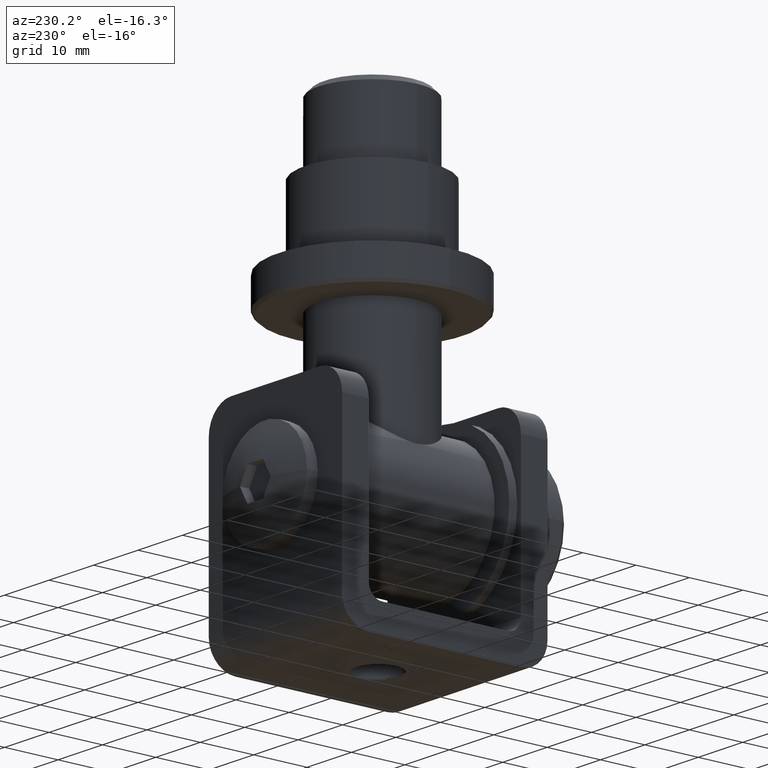
[diagram: clean part render]
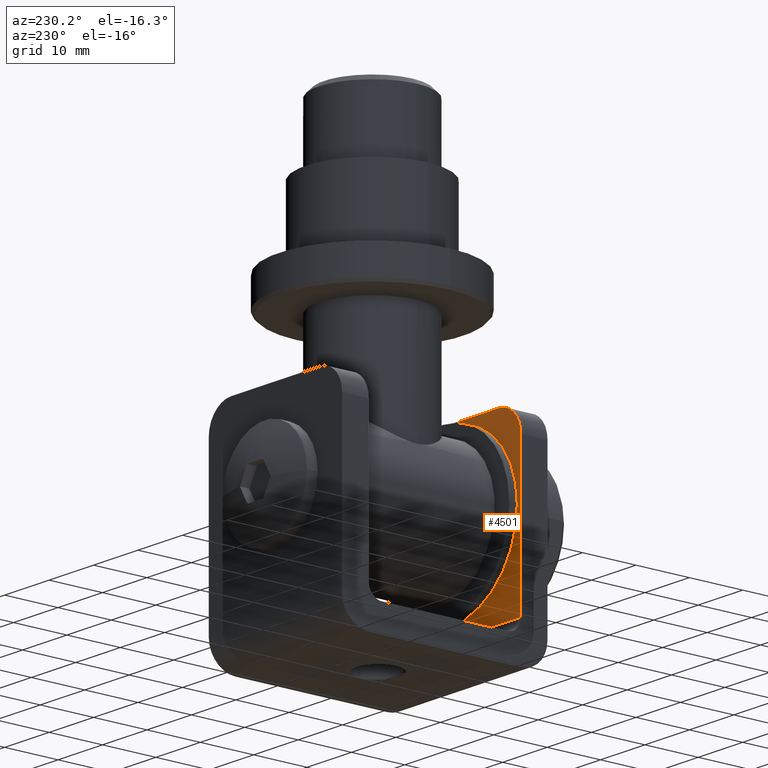
[diagram: same view with one face highlighted and labeled with its STEP entity id]
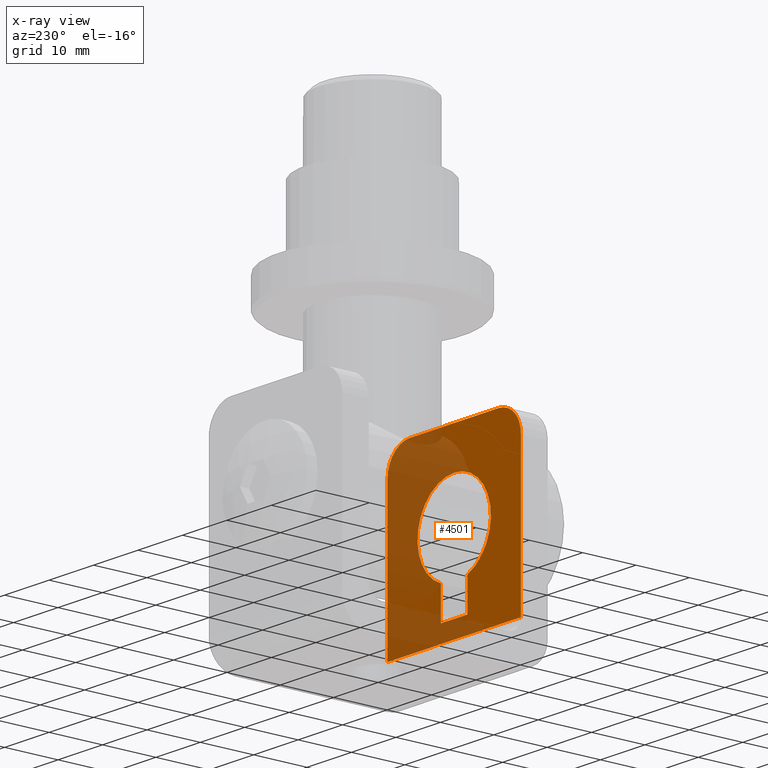
[diagram: x-ray of the same camera — body ghosted, the highlighted face saturated]
A machine part, auxiliary view. The second image highlights one B-rep face of the part: STEP entity #4501.
The next image is the same camera in x-ray: the body ghosted, the highlighted face saturated — about 50% of this face is hidden behind the body in this view.
In plain terms, the highlighted planar face has unit normal (0, -1, 0).
Its self-contained STEP definition (entity closure, byte-faithful):
#91 = EDGE_CURVE ( 'NONE', #6313, #6776, #5718, .T. ) ;
#124 = VERTEX_POINT ( 'NONE', #8130 ) ;
#142 = ORIENTED_EDGE ( 'NONE', *, *, #3111, .T. ) ;
#407 = CARTESIAN_POINT ( 'NONE',  ( 3.000000000000000000, -14.24999999999999822, -5.885213074469702654 ) ) ;
#464 = CARTESIAN_POINT ( 'NONE',  ( 2.999999999999999112, -14.24999999999999822, -17.49999999999999645 ) ) ;
#517 = EDGE_LOOP ( 'NONE', ( #13734, #3013, #9429, #1323, #13271 ) ) ;
#797 = VECTOR ( 'NONE', #16139, 1000.000000000000000 ) ;
#872 = VERTEX_POINT ( 'NONE', #14243 ) ;
#996 = VERTEX_POINT ( 'NONE', #4168 ) ;
#1015 = VECTOR ( 'NONE', #13356, 1000.000000000000000 ) ;
#1093 = EDGE_CURVE ( 'NONE', #872, #4428, #12724, .T. ) ;
#1323 = ORIENTED_EDGE ( 'NONE', *, *, #5854, .T. ) ;
#1578 = DIRECTION ( 'NONE',  ( 0.000000000000000000, -1.000000000000000000, 0.000000000000000000 ) ) ;
#1721 = LINE ( 'NONE', #3737, #8691 ) ;
#2162 = LINE ( 'NONE', #2271, #10100 ) ;
#2271 = CARTESIAN_POINT ( 'NONE',  ( 15.00000000000000000, -14.24999999999999822, 17.49999999999999645 ) ) ;
#2303 = DIRECTION ( 'NONE',  ( 0.000000000000000000, 0.000000000000000000, -1.000000000000000000 ) ) ;
#2605 = DIRECTION ( 'NONE',  ( 0.000000000000000000, 0.000000000000000000, 1.000000000000000000 ) ) ;
#2718 = VECTOR ( 'NONE', #2605, 1000.000000000000000 ) ;
#2788 = DIRECTION ( 'NONE',  ( 1.040834085586084257E-15, 0.000000000000000000, -1.000000000000000000 ) ) ;
#2917 = CARTESIAN_POINT ( 'NONE',  ( -3.000000000000000000, -14.24999999999999822, -11.89000000000000234 ) ) ;
#3013 = ORIENTED_EDGE ( 'NONE', *, *, #13685, .T. ) ;
#3111 = EDGE_CURVE ( 'NONE', #15588, #124, #5861, .T. ) ;
#3190 = AXIS2_PLACEMENT_3D ( 'NONE', #11355, #12691, #2788 ) ;
#3198 = ORIENTED_EDGE ( 'NONE', *, *, #91, .F. ) ;
#3207 = DIRECTION ( 'NONE',  ( 0.000000000000000000, -0.000000000000000000, -1.000000000000000000 ) ) ;
#3451 = DIRECTION ( 'NONE',  ( 0.000000000000000000, 0.000000000000000000, -1.000000000000000000 ) ) ;
#3737 = CARTESIAN_POINT ( 'NONE',  ( -15.00000000000000000, -14.24999999999999822, -14.99999999999999467 ) ) ;
#3975 = ORIENTED_EDGE ( 'NONE', *, *, #8413, .T. ) ;
#4168 = CARTESIAN_POINT ( 'NONE',  ( -15.00000000000000000, -14.24999999999999822, -14.99999999999999467 ) ) ;
#4428 = VERTEX_POINT ( 'NONE', #407 ) ;
#4470 = DIRECTION ( 'NONE',  ( 0.000000000000000000, -1.000000000000000000, 0.000000000000000000 ) ) ;
#4501 = ADVANCED_FACE ( 'NONE', ( #10131, #13470 ), #14492, .F. ) ;
#4540 = DIRECTION ( 'NONE',  ( 0.000000000000000000, 0.000000000000000000, 1.000000000000000000 ) ) ;
#4589 = CARTESIAN_POINT ( 'NONE',  ( 15.00000000000000000, -14.24999999999999822, -17.49999999999999645 ) ) ;
#4729 = AXIS2_PLACEMENT_3D ( 'NONE', #13449, #5986, #2303 ) ;
#4767 = AXIS2_PLACEMENT_3D ( 'NONE', #13135, #4470, #3207 ) ;
#5152 = CARTESIAN_POINT ( 'NONE',  ( 0.000000000000000000, -14.24999999999999822, 1.799999999999996048 ) ) ;
#5166 = ORIENTED_EDGE ( 'NONE', *, *, #6595, .T. ) ;
#5249 = ORIENTED_EDGE ( 'NONE', *, *, #5609, .F. ) ;
#5352 = AXIS2_PLACEMENT_3D ( 'NONE', #13547, #11071, #3451 ) ;
#5609 = EDGE_CURVE ( 'NONE', #11874, #124, #2162, .T. ) ;
#5612 = CIRCLE ( 'NONE', #9365, 8.250000000000000000 ) ;
#5633 = CIRCLE ( 'NONE', #5352, 8.250000000000000000 ) ;
#5718 = LINE ( 'NONE', #4589, #15258 ) ;
#5792 = CARTESIAN_POINT ( 'NONE',  ( -3.000000000000000000, -14.24999999999999822, -5.885213074469702654 ) ) ;
#5854 = EDGE_CURVE ( 'NONE', #14173, #872, #14422, .T. ) ;
#5861 = CIRCLE ( 'NONE', #3190, 5.000000000000000000 ) ;
#5986 = DIRECTION ( 'NONE',  ( -0.000000000000000000, 1.000000000000000000, -0.000000000000000000 ) ) ;
#6313 = VERTEX_POINT ( 'NONE', #12312 ) ;
#6572 = DIRECTION ( 'NONE',  ( -1.000000000000000000, 0.000000000000000000, 0.000000000000000000 ) ) ;
#6595 = EDGE_CURVE ( 'NONE', #996, #15588, #8157, .T. ) ;
#6776 = VERTEX_POINT ( 'NONE', #15221 ) ;
#6836 = VERTEX_POINT ( 'NONE', #8940 ) ;
#7362 = CIRCLE ( 'NONE', #4729, 5.000000000000000000 ) ;
#8130 = CARTESIAN_POINT ( 'NONE',  ( -9.999999999999998224, -14.24999999999999822, 17.49999999999999645 ) ) ;
#8157 = LINE ( 'NONE', #8627, #2718 ) ;
#8413 = EDGE_CURVE ( 'NONE', #6313, #996, #1721, .T. ) ;
#8609 = CARTESIAN_POINT ( 'NONE',  ( -15.00000000000000000, -14.24999999999999822, 12.49999999999999289 ) ) ;
#8627 = CARTESIAN_POINT ( 'NONE',  ( -15.00000000000000000, -14.24999999999999822, -17.49999999999999645 ) ) ;
#8691 = VECTOR ( 'NONE', #6572, 1000.000000000000000 ) ;
#8940 = CARTESIAN_POINT ( 'NONE',  ( 0.000000000000000000, -14.24999999999999822, 10.04999999999999716 ) ) ;
#9365 = AXIS2_PLACEMENT_3D ( 'NONE', #5152, #1578, #13921 ) ;
#9429 = ORIENTED_EDGE ( 'NONE', *, *, #11752, .T. ) ;
#9672 = EDGE_CURVE ( 'NONE', #4428, #6836, #5612, .T. ) ;
#9819 = VERTEX_POINT ( 'NONE', #5792 ) ;
#10100 = VECTOR ( 'NONE', #12035, 1000.000000000000000 ) ;
#10131 = FACE_BOUND ( 'NONE', #517, .T. ) ;
#10461 = DIRECTION ( 'NONE',  ( 0.000000000000000000, 0.000000000000000000, 1.000000000000000000 ) ) ;
#11071 = DIRECTION ( 'NONE',  ( 0.000000000000000000, -1.000000000000000000, 0.000000000000000000 ) ) ;
#11355 = CARTESIAN_POINT ( 'NONE',  ( -9.999999999999998224, -14.24999999999999822, 12.49999999999999289 ) ) ;
#11363 = ORIENTED_EDGE ( 'NONE', *, *, #15039, .T. ) ;
#11507 = LINE ( 'NONE', #13307, #1015 ) ;
#11752 = EDGE_CURVE ( 'NONE', #9819, #14173, #11507, .T. ) ;
#11874 = VERTEX_POINT ( 'NONE', #12308 ) ;
#12035 = DIRECTION ( 'NONE',  ( -1.000000000000000000, -0.000000000000000000, -0.000000000000000000 ) ) ;
#12308 = CARTESIAN_POINT ( 'NONE',  ( 9.999999999999998224, -14.24999999999999822, 17.49999999999999645 ) ) ;
#12312 = CARTESIAN_POINT ( 'NONE',  ( 15.00000000000000000, -14.24999999999999822, -14.99999999999999467 ) ) ;
#12532 = VECTOR ( 'NONE', #10461, 1000.000000000000000 ) ;
#12691 = DIRECTION ( 'NONE',  ( -0.000000000000000000, 1.000000000000000000, -0.000000000000000000 ) ) ;
#12724 = LINE ( 'NONE', #464, #12532 ) ;
#13135 = CARTESIAN_POINT ( 'NONE',  ( 15.00000000000000000, -14.24999999999999822, -17.49999999999999645 ) ) ;
#13271 = ORIENTED_EDGE ( 'NONE', *, *, #1093, .T. ) ;
#13307 = CARTESIAN_POINT ( 'NONE',  ( -2.999999999999999112, -14.24999999999999822, -17.49999999999999645 ) ) ;
#13356 = DIRECTION ( 'NONE',  ( 0.000000000000000000, 0.000000000000000000, -1.000000000000000000 ) ) ;
#13449 = CARTESIAN_POINT ( 'NONE',  ( 9.999999999999998224, -14.24999999999999822, 12.49999999999999289 ) ) ;
#13470 = FACE_OUTER_BOUND ( 'NONE', #14120, .T. ) ;
#13547 = CARTESIAN_POINT ( 'NONE',  ( 0.000000000000000000, -14.24999999999999822, 1.799999999999996048 ) ) ;
#13590 = CARTESIAN_POINT ( 'NONE',  ( 15.00000000000000000, -14.24999999999999822, -11.89000000000000234 ) ) ;
#13685 = EDGE_CURVE ( 'NONE', #6836, #9819, #5633, .T. ) ;
#13734 = ORIENTED_EDGE ( 'NONE', *, *, #9672, .T. ) ;
#13921 = DIRECTION ( 'NONE',  ( 0.000000000000000000, 0.000000000000000000, -1.000000000000000000 ) ) ;
#14120 = EDGE_LOOP ( 'NONE', ( #3198, #3975, #5166, #142, #5249, #11363 ) ) ;
#14173 = VERTEX_POINT ( 'NONE', #2917 ) ;
#14243 = CARTESIAN_POINT ( 'NONE',  ( 3.000000000000000000, -14.24999999999999822, -11.89000000000000234 ) ) ;
#14422 = LINE ( 'NONE', #13590, #797 ) ;
#14492 = PLANE ( 'NONE',  #4767 ) ;
#15039 = EDGE_CURVE ( 'NONE', #11874, #6776, #7362, .T. ) ;
#15221 = CARTESIAN_POINT ( 'NONE',  ( 15.00000000000000000, -14.24999999999999822, 12.49999999999999289 ) ) ;
#15258 = VECTOR ( 'NONE', #4540, 1000.000000000000000 ) ;
#15588 = VERTEX_POINT ( 'NONE', #8609 ) ;
#16139 = DIRECTION ( 'NONE',  ( 1.000000000000000000, 0.000000000000000000, 0.000000000000000000 ) ) ;